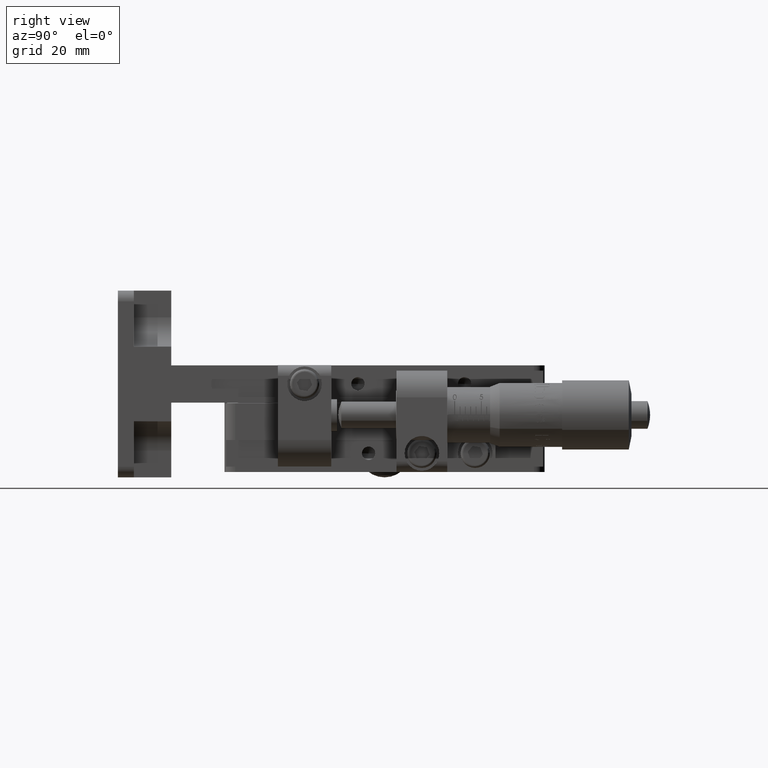
[diagram: clean part render]
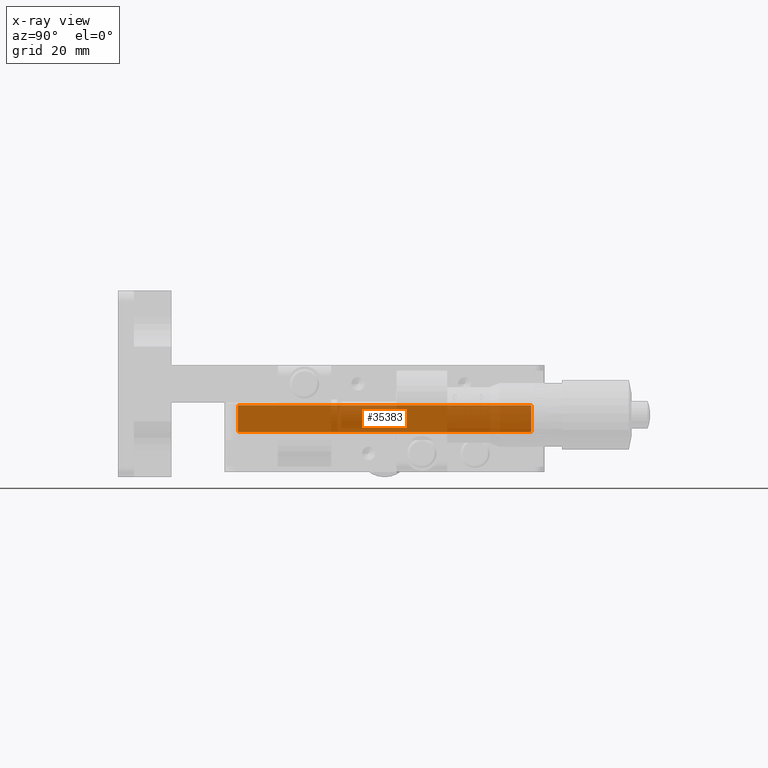
[diagram: x-ray — body ghosted, one internal face saturated and labeled with its STEP entity id]
A machine part, right view, then the same camera in x-ray: the body is ghosted and one INTERNAL B-rep face — a face not visible from any outside direction — is saturated and labeled: STEP entity #35383.
In plain terms, the highlighted planar face has unit normal (1, 0, -0).
Its self-contained STEP definition (entity closure, byte-faithful):
#657 = ORIENTED_EDGE ( 'NONE', *, *, #26443, .T. ) ;
#1956 = LINE ( 'NONE', #40640, #45212 ) ;
#2177 = DIRECTION ( 'NONE',  ( 1.695581602067403400E-015, -0.8164965809277274800, 0.5773502691896237300 ) ) ;
#2198 = ORIENTED_EDGE ( 'NONE', *, *, #22296, .T. ) ;
#2478 = EDGE_LOOP ( 'NONE', ( #2198, #56884, #22782, #7252, #31409, #657, #25310, #43616 ) ) ;
#6031 = CARTESIAN_POINT ( 'NONE',  ( 12.59999999999987000, 67.35857864376244200, -8.999999999999298300 ) ) ;
#7252 = ORIENTED_EDGE ( 'NONE', *, *, #55197, .T. ) ;
#7860 = VERTEX_POINT ( 'NONE', #6031 ) ;
#7943 = AXIS2_PLACEMENT_3D ( 'NONE', #47373, #9707, #19292 ) ;
#8386 = VERTEX_POINT ( 'NONE', #24310 ) ;
#9324 = VERTEX_POINT ( 'NONE', #47987 ) ;
#9707 = DIRECTION ( 'NONE',  ( 1.000000000000000000, 2.791479364622770900E-015, -1.839740411500507000E-015 ) ) ;
#13425 = VECTOR ( 'NONE', #55507, 1000.000000000000000 ) ;
#14117 = EDGE_CURVE ( 'NONE', #41968, #9324, #52927, .T. ) ;
#16686 = FACE_OUTER_BOUND ( 'NONE', #2478, .T. ) ;
#16790 = CARTESIAN_POINT ( 'NONE',  ( 12.59999999999993200, 10.09901875828255900, -5.797750117519322900 ) ) ;
#18961 = LINE ( 'NONE', #54890, #39467 ) ;
#19292 = DIRECTION ( 'NONE',  ( 2.791479364622775300E-015, -1.000000000000000000, 2.289268817027406900E-015 ) ) ;
#20551 = CARTESIAN_POINT ( 'NONE',  ( 12.60000000000004200, 9.999999999999971600, -8.999999999999216600 ) ) ;
#21054 = VERTEX_POINT ( 'NONE', #26722 ) ;
#22296 = EDGE_CURVE ( 'NONE', #9324, #21054, #57043, .T. ) ;
#22352 = DIRECTION ( 'NONE',  ( 2.791479364622775300E-015, -1.000000000000000000, 2.289268817027406900E-015 ) ) ;
#22628 = CARTESIAN_POINT ( 'NONE',  ( 12.59999999999999600, 12.50000000000000700, -3.499999999999261900 ) ) ;
#22782 = ORIENTED_EDGE ( 'NONE', *, *, #36648, .T. ) ;
#24173 = EDGE_CURVE ( 'NONE', #21054, #52733, #40597, .T. ) ;
#24310 = CARTESIAN_POINT ( 'NONE',  ( 12.59999999999998900, 12.64142135623732200, -8.999999999999202400 ) ) ;
#25069 = CARTESIAN_POINT ( 'NONE',  ( 12.60000000000006000, 9.999999999999907600, -3.999999999999219300 ) ) ;
#25310 = ORIENTED_EDGE ( 'NONE', *, *, #51792, .T. ) ;
#25493 = CARTESIAN_POINT ( 'NONE',  ( 12.60000000000005800, 10.09901875828251500, -7.202249882479109500 ) ) ;
#26443 = EDGE_CURVE ( 'NONE', #8386, #35234, #38263, .T. ) ;
#26722 = CARTESIAN_POINT ( 'NONE',  ( 12.59999999999993000, 67.35857864376235700, -3.999999999999367600 ) ) ;
#30812 = CARTESIAN_POINT ( 'NONE',  ( 12.60000000000005300, 12.50000000000000000, -8.899999999999181500 ) ) ;
#31409 = ORIENTED_EDGE ( 'NONE', *, *, #37721, .T. ) ;
#35234 = VERTEX_POINT ( 'NONE', #30812 ) ;
#35383 = ADVANCED_FACE ( 'NONE', ( #16686 ), #37895, .F. ) ;
#35731 = DIRECTION ( 'NONE',  ( 2.862885111822189800E-015, -0.8164965809277249200, -0.5773502691896271700 ) ) ;
#36648 = EDGE_CURVE ( 'NONE', #52733, #46842, #1956, .T. ) ;
#37721 = EDGE_CURVE ( 'NONE', #7860, #8386, #45855, .T. ) ;
#37781 = CARTESIAN_POINT ( 'NONE',  ( 12.60000000000001900, 12.49999999999992400, -4.099999999999266000 ) ) ;
#37895 = PLANE ( 'NONE',  #7943 ) ;
#38263 = LINE ( 'NONE', #25493, #47854 ) ;
#39467 = VECTOR ( 'NONE', #35731, 1000.000000000000100 ) ;
#40597 = LINE ( 'NONE', #55179, #58311 ) ;
#40640 = CARTESIAN_POINT ( 'NONE',  ( 12.59999999999987900, 67.49999999999982900, -9.499999999999332100 ) ) ;
#41968 = VERTEX_POINT ( 'NONE', #37781 ) ;
#43429 = CARTESIAN_POINT ( 'NONE',  ( 12.59999999999992900, 67.49999999999974400, -8.899999999999302200 ) ) ;
#43616 = ORIENTED_EDGE ( 'NONE', *, *, #14117, .T. ) ;
#45197 = DIRECTION ( 'NONE',  ( -2.862885111822192100E-015, 0.8164965809277288100, 0.5773502691896218500 ) ) ;
#45212 = VECTOR ( 'NONE', #46292, 1000.000000000000000 ) ;
#45855 = LINE ( 'NONE', #20551, #46551 ) ;
#46292 = DIRECTION ( 'NONE',  ( 1.010914493374392400E-015, 2.615642337315619000E-017, -1.000000000000000000 ) ) ;
#46551 = VECTOR ( 'NONE', #22352, 1000.000000000000000 ) ;
#46842 = VERTEX_POINT ( 'NONE', #43429 ) ;
#47373 = CARTESIAN_POINT ( 'NONE',  ( 12.60000000000002100, 10.00000000000001200, -9.499999999999222000 ) ) ;
#47854 = VECTOR ( 'NONE', #2177, 1000.000000000000000 ) ;
#47987 = CARTESIAN_POINT ( 'NONE',  ( 12.60000000000001900, 12.64142135623723100, -3.999999999999241900 ) ) ;
#48029 = DIRECTION ( 'NONE',  ( -2.791479364622775300E-015, 1.000000000000000000, -2.289268817027406900E-015 ) ) ;
#51792 = EDGE_CURVE ( 'NONE', #35234, #41968, #56766, .T. ) ;
#52733 = VERTEX_POINT ( 'NONE', #59703 ) ;
#52927 = LINE ( 'NONE', #16790, #58124 ) ;
#54890 = CARTESIAN_POINT ( 'NONE',  ( 12.59999999999999600, 49.90098124171765900, -21.34438550621018400 ) ) ;
#54970 = DIRECTION ( 'NONE',  ( -1.695581602067391400E-015, 0.8164965809277239300, -0.5773502691896288400 ) ) ;
#55179 = CARTESIAN_POINT ( 'NONE',  ( 12.59999999999994100, 49.90098124171751700, 8.344385506211441600 ) ) ;
#55197 = EDGE_CURVE ( 'NONE', #46842, #7860, #18961, .T. ) ;
#55507 = DIRECTION ( 'NONE',  ( -1.010914493374392400E-015, -2.615642337315619000E-017, 1.000000000000000000 ) ) ;
#56766 = LINE ( 'NONE', #22628, #13425 ) ;
#56884 = ORIENTED_EDGE ( 'NONE', *, *, #24173, .T. ) ;
#57043 = LINE ( 'NONE', #25069, #59317 ) ;
#58124 = VECTOR ( 'NONE', #45197, 999.9999999999998900 ) ;
#58311 = VECTOR ( 'NONE', #54970, 1000.000000000000100 ) ;
#59317 = VECTOR ( 'NONE', #48029, 1000.000000000000000 ) ;
#59703 = CARTESIAN_POINT ( 'NONE',  ( 12.59999999999993000, 67.49999999999964500, -4.099999999999366400 ) ) ;